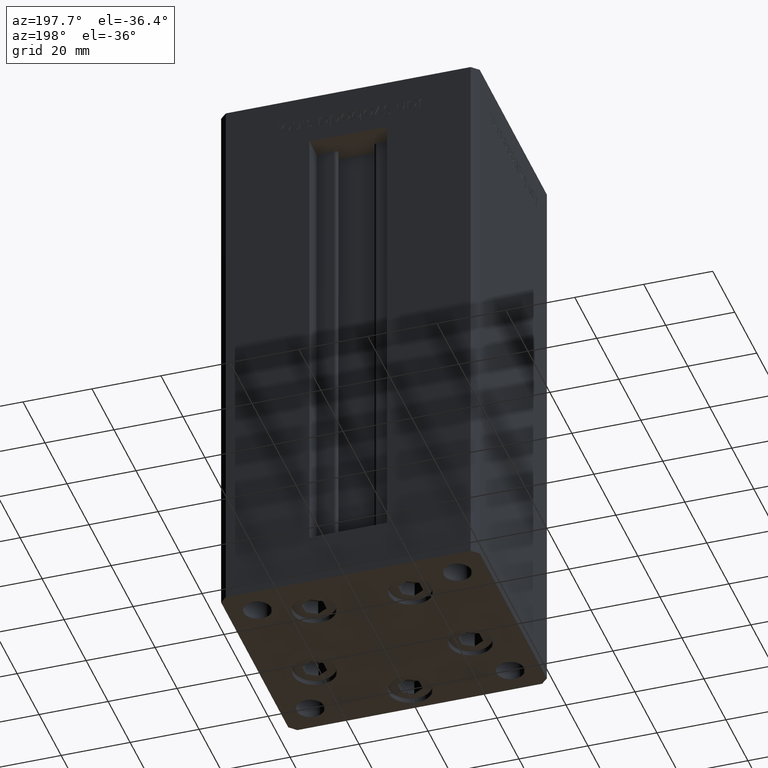
[diagram: clean part render]
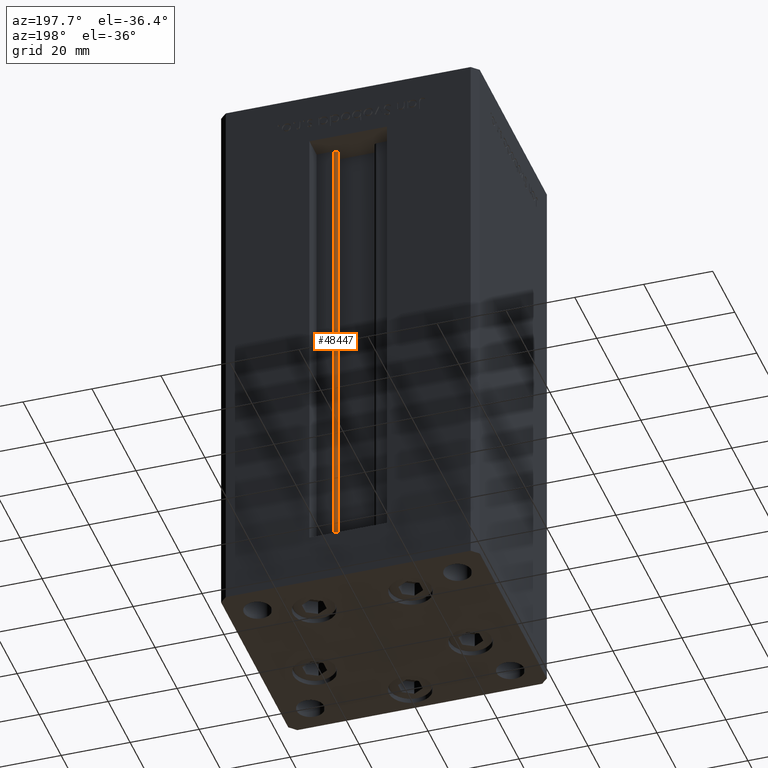
[diagram: same view with one face highlighted and labeled with its STEP entity id]
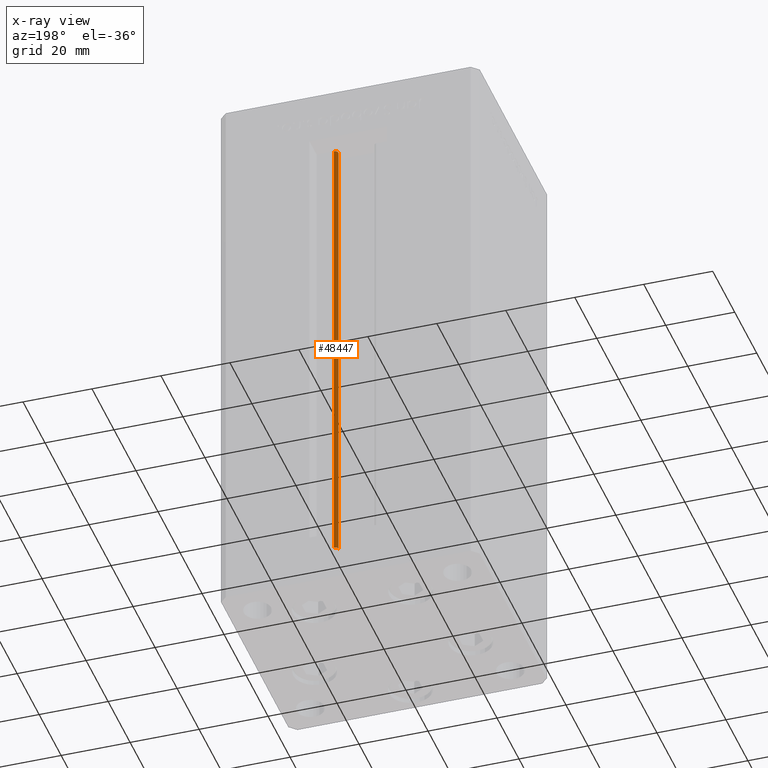
[diagram: x-ray of the same camera — body ghosted, the highlighted face saturated]
A machine part, auxiliary view. The second image highlights one B-rep face of the part: STEP entity #48447.
The next image is the same camera in x-ray: the body ghosted, the highlighted face saturated — about 0% of this face is hidden behind the body in this view.
In plain terms, the highlighted cylindrical surface (edge-blend (fillet) strip) has radius 0.9333 mm, axis along (0, 0, 1).
Its self-contained STEP definition (entity closure, byte-faithful):
#537 = ORIENTED_EDGE ( 'NONE', *, *, #6969, .T. ) ;
#590 = LINE ( 'NONE', #43431, #26993 ) ;
#1386 = EDGE_LOOP ( 'NONE', ( #2758, #3864, #537, #35036 ) ) ;
#1789 = CIRCLE ( 'NONE', #42262, 0.9333333333340008142 ) ;
#2479 = VERTEX_POINT ( 'NONE', #12096 ) ;
#2758 = ORIENTED_EDGE ( 'NONE', *, *, #26869, .F. ) ;
#3864 = ORIENTED_EDGE ( 'NONE', *, *, #10428, .F. ) ;
#4681 = FACE_OUTER_BOUND ( 'NONE', #1386, .T. ) ;
#6047 = AXIS2_PLACEMENT_3D ( 'NONE', #21401, #9528, #37230 ) ;
#6969 = EDGE_CURVE ( 'NONE', #2479, #26748, #590, .T. ) ;
#9343 = DIRECTION ( 'NONE',  ( -0.000000000000000000, -0.000000000000000000, -1.000000000000000000 ) ) ;
#9528 = DIRECTION ( 'NONE',  ( 0.000000000000000000, 0.000000000000000000, -1.000000000000000000 ) ) ;
#10428 = EDGE_CURVE ( 'NONE', #2479, #25932, #1789, .T. ) ;
#10632 = CARTESIAN_POINT ( 'NONE',  ( 6.183333333334001480, 25.99999999999999289, 0.000000000000000000 ) ) ;
#11163 = AXIS2_PLACEMENT_3D ( 'NONE', #48206, #16570, #40313 ) ;
#12096 = CARTESIAN_POINT ( 'NONE',  ( 5.375042956467947164, 24.59999999999899245, 0.000000000000000000 ) ) ;
#12251 = DIRECTION ( 'NONE',  ( -0.000000000000000000, -0.000000000000000000, 1.000000000000000000 ) ) ;
#13353 = LINE ( 'NONE', #10632, #33346 ) ;
#16570 = DIRECTION ( 'NONE',  ( -0.000000000000000000, -0.000000000000000000, 1.000000000000000000 ) ) ;
#19799 = CARTESIAN_POINT ( 'NONE',  ( 6.183333333334001480, 25.99999999999999289, 136.0000000000000000 ) ) ;
#20427 = CIRCLE ( 'NONE', #6047, 0.9333333333340008142 ) ;
#21401 = CARTESIAN_POINT ( 'NONE',  ( 6.183333333334001480, 25.06666666666599141, 136.0000000000000000 ) ) ;
#21486 = DIRECTION ( 'NONE',  ( 1.000000000000000000, 0.000000000000000000, 0.000000000000000000 ) ) ;
#25932 = VERTEX_POINT ( 'NONE', #35731 ) ;
#26748 = VERTEX_POINT ( 'NONE', #32364 ) ;
#26869 = EDGE_CURVE ( 'NONE', #25932, #52138, #13353, .T. ) ;
#26993 = VECTOR ( 'NONE', #12251, 1000.000000000000000 ) ;
#32364 = CARTESIAN_POINT ( 'NONE',  ( 5.375042956467948052, 24.59999999999899245, 136.0000000000000000 ) ) ;
#33346 = VECTOR ( 'NONE', #46740, 1000.000000000000000 ) ;
#35036 = ORIENTED_EDGE ( 'NONE', *, *, #43375, .T. ) ;
#35731 = CARTESIAN_POINT ( 'NONE',  ( 6.183333333334001480, 25.99999999999999289, 0.000000000000000000 ) ) ;
#37230 = DIRECTION ( 'NONE',  ( 1.000000000000000000, 0.000000000000000000, 0.000000000000000000 ) ) ;
#40313 = DIRECTION ( 'NONE',  ( 1.000000000000000000, 0.000000000000000000, 0.000000000000000000 ) ) ;
#42262 = AXIS2_PLACEMENT_3D ( 'NONE', #49159, #9343, #21486 ) ;
#43375 = EDGE_CURVE ( 'NONE', #26748, #52138, #20427, .T. ) ;
#43431 = CARTESIAN_POINT ( 'NONE',  ( 5.375042956467947164, 24.59999999999899245, 0.000000000000000000 ) ) ;
#46740 = DIRECTION ( 'NONE',  ( -0.000000000000000000, -0.000000000000000000, 1.000000000000000000 ) ) ;
#48206 = CARTESIAN_POINT ( 'NONE',  ( 6.183333333334001480, 25.06666666666599141, 0.000000000000000000 ) ) ;
#48447 = ADVANCED_FACE ( 'NONE', ( #4681 ), #48473, .T. ) ;
#48473 = CYLINDRICAL_SURFACE ( 'NONE', #11163, 0.9333333333340008142 ) ;
#49159 = CARTESIAN_POINT ( 'NONE',  ( 6.183333333334001480, 25.06666666666599141, 0.000000000000000000 ) ) ;
#52138 = VERTEX_POINT ( 'NONE', #19799 ) ;